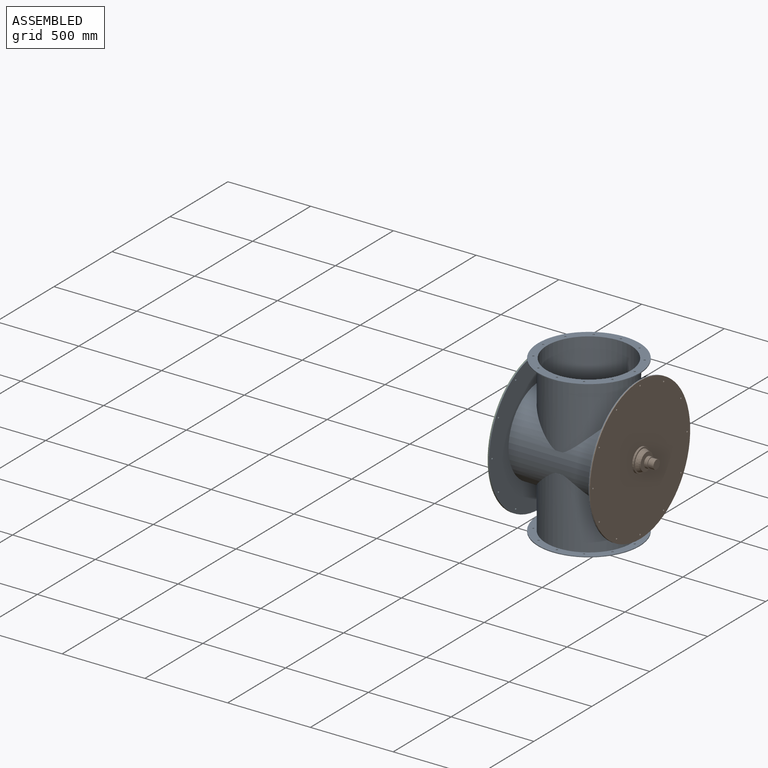
[diagram: assembled view]
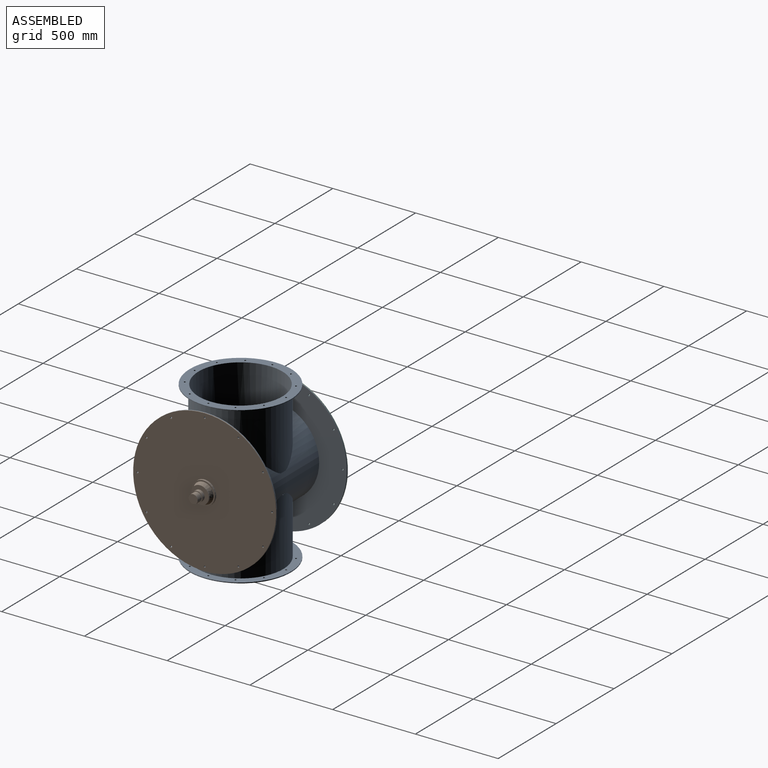
[diagram: assembled view, second angle]
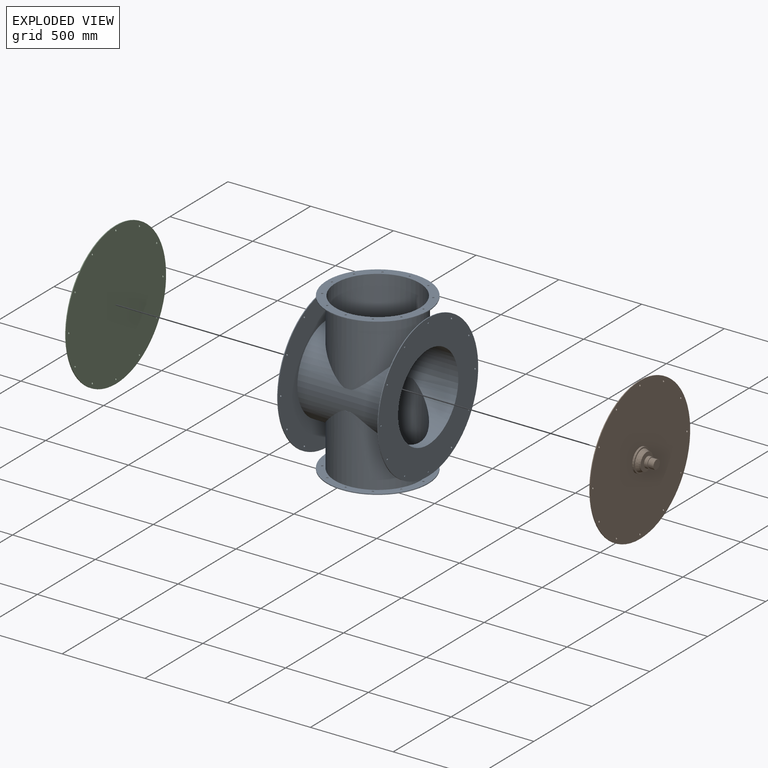
[diagram: exploded view]
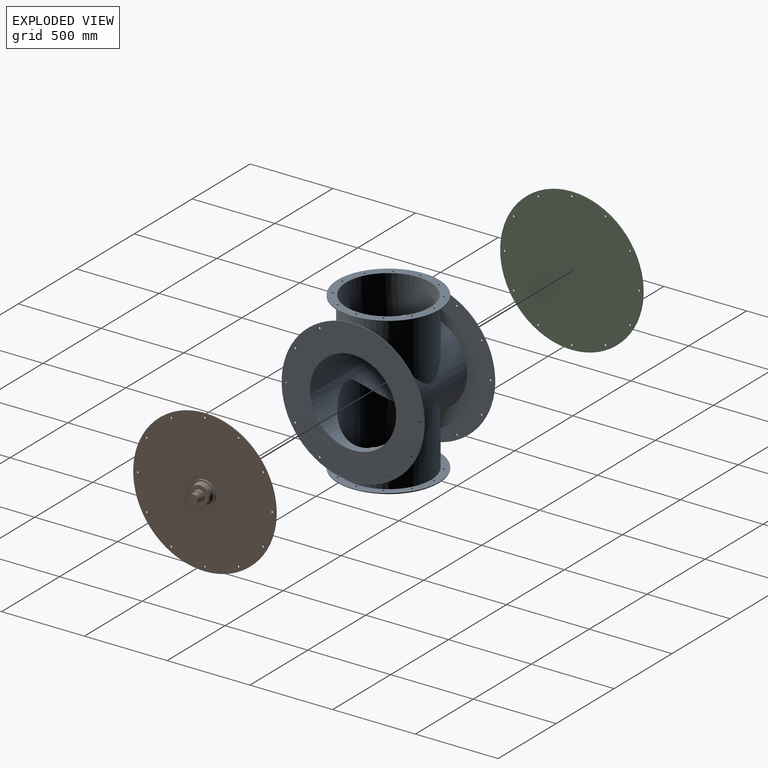
[diagram: exploded view, second angle]
ASSEMBLY  parts=3 mates=2
PART A: 74 faces, bbox 612.8x863.6x946.2 mm
  f0: plane 863.6x863.6mm, normal (-1,0,0), area 371672.6mm2, adj f1,f2,f3,f4,f5,f6,f7,f8
  f1: cylinder r=5.49mm len=10.99mm, axis (-1,0,0), area 164.4mm2, adj f0,f14
  f2: cylinder r=5.49mm len=10.99mm, axis (-1,0,0), area 164.4mm2, adj f0,f14
  f3: cylinder r=5.49mm len=10.99mm, axis (-1,0,0), area 164.4mm2, adj f0,f14
  f4: cylinder r=5.49mm len=10.99mm, axis (-1,0,0), area 164.4mm2, adj f0,f14
  f5: cylinder r=5.49mm len=10.99mm, axis (-1,0,0), area 164.4mm2, adj f0,f14
  f6: cylinder r=5.49mm len=10.99mm, axis (-1,0,0), area 164.4mm2, adj f0,f14
  f7: cylinder r=5.49mm len=10.99mm, axis (-1,0,0), area 164.4mm2, adj f0,f14
  f8: cylinder r=5.49mm len=10.99mm, axis (-1,0,0), area 164.4mm2, adj f0,f14
  f9: cylinder r=5.49mm len=10.99mm, axis (-1,0,0), area 164.4mm2, adj f0,f14
  f10: cylinder r=5.49mm len=10.99mm, axis (-1,0,0), area 164.4mm2, adj f0,f14
  f11: cylinder r=5.49mm len=10.99mm, axis (-1,0,0), area 164.4mm2, adj f0,f14
  f12: cylinder r=5.49mm len=10.99mm, axis (-1,0,0), area 164.4mm2, adj f0,f14
  f13: cylinder r=431.8mm len=863.6mm, axis (1,0,0), area 12921mm2, adj f0,f14
  f14: plane 863.6x863.6mm, normal (1,0,0), area 363810.8mm2, adj f1,f2,f3,f4,f5,f6,f7,f8
  f15: plane 45.01x0.98mm, normal (0,0,1), area 29.4mm2, adj f18,f48
  f16: plane 45.01x0.98mm, normal (0,0,1), area 29.4mm2, adj f18,f48
  f17: plane 45.01x0.98mm, normal (0,0,-1), area 29.4mm2, adj f48,f50
  f18: cylinder r=258.76mm len=517.53mm, axis (0,0,-1), area 470868.9mm2, adj f15,f16,f33,f48
  f19: cylinder r=5.49mm len=10.99mm, axis (0,0,-1), area 164.4mm2, adj f31,f33
  f20: cylinder r=5.49mm len=10.99mm, axis (0,0,-1), area 164.4mm2, adj f31,f33
  f21: cylinder r=5.49mm len=10.99mm, axis (0,0,-1), area 164.4mm2, adj f31,f33
  f22: cylinder r=5.49mm len=10.99mm, axis (0,0,-1), area 164.4mm2, adj f31,f33
  f23: cylinder r=5.49mm len=10.99mm, axis (0,0,-1), area 164.4mm2, adj f31,f33
  f24: cylinder r=5.49mm len=10.99mm, axis (0,0,-1), area 164.4mm2, adj f31,f33
  f25: cylinder r=5.49mm len=10.99mm, axis (0,0,-1), area 164.4mm2, adj f31,f33
  f26: cylinder r=5.49mm len=10.99mm, axis (0,0,-1), area 164.4mm2, adj f31,f33
  f27: cylinder r=5.49mm len=10.99mm, axis (0,0,-1), area 164.4mm2, adj f31,f33
  f28: cylinder r=5.49mm len=10.99mm, axis (0,0,-1), area 164.4mm2, adj f31,f33
  f29: cylinder r=5.49mm len=10.99mm, axis (0,0,-1), area 164.4mm2, adj f31,f33
  f30: cylinder r=5.49mm len=10.99mm, axis (0,0,-1), area 164.4mm2, adj f31,f33
  f31: plane 612.78x612.78mm, normal (0,0,-1), area 91091.3mm2, adj f19,f20,f21,f22,f23,f24,f25,f26
  f32: cylinder r=306.39mm len=612.78mm, axis (0,0,-1), area 9168.2mm2, adj f31,f33
  f33: plane 612.78x612.78mm, normal (0,0,1), area 83419.4mm2, adj f18,f19,f20,f21,f22,f23,f24,f25
  f34: cylinder r=5.49mm len=10.99mm, axis (1,0,0), area 164.4mm2, adj f46,f66
  f35: cylinder r=5.49mm len=10.99mm, axis (1,0,0), area 164.4mm2, adj f46,f66
  f36: cylinder r=5.49mm len=10.99mm, axis (1,0,0), area 164.4mm2, adj f46,f66
  f37: cylinder r=5.49mm len=10.99mm, axis (1,0,0), area 164.4mm2, adj f46,f66
  f38: cylinder r=5.49mm len=10.99mm, axis (1,0,0), area 164.4mm2, adj f46,f66
  f39: cylinder r=5.49mm len=10.99mm, axis (1,0,0), area 164.4mm2, adj f46,f66
  f40: cylinder r=5.49mm len=10.99mm, axis (1,0,0), area 164.4mm2, adj f46,f66
  f41: cylinder r=5.49mm len=10.99mm, axis (1,0,0), area 164.4mm2, adj f46,f66
  f42: cylinder r=5.49mm len=10.99mm, axis (1,0,0), area 164.4mm2, adj f46,f66
  f43: cylinder r=5.49mm len=10.99mm, axis (1,0,0), area 164.4mm2, adj f46,f66
  f44: cylinder r=431.8mm len=863.6mm, axis (-1,0,0), area 12921mm2, adj f46,f66
  f45: cylinder r=5.49mm len=10.99mm, axis (1,0,0), area 164.4mm2, adj f46,f66
  f46: plane 863.6x863.6mm, normal (-1,0,0), area 363810.8mm2, adj f34,f35,f36,f37,f38,f39,f40,f41
  f47: cylinder r=5.49mm len=10.99mm, axis (1,0,0), area 164.4mm2, adj f46,f66
  f48: cylinder r=265.11mm len=600.08mm, axis (1,0,0), area 483387.5mm2, adj f14,f15,f16,f17,f18,f46,f49,f50
  f49: plane 45.01x0.98mm, normal (0,0,-1), area 29.4mm2, adj f48,f50
  f50: cylinder r=258.76mm len=517.53mm, axis (0,0,1), area 470878.3mm2, adj f17,f48,f49,f65
  f51: cylinder r=5.49mm len=10.99mm, axis (0,0,1), area 164.4mm2, adj f63,f65
  f52: cylinder r=5.49mm len=10.99mm, axis (0,0,1), area 164.4mm2, adj f63,f65
  f53: cylinder r=5.49mm len=10.99mm, axis (0,0,1), area 164.4mm2, adj f63,f65
  f54: cylinder r=5.49mm len=10.99mm, axis (0,0,1), area 164.4mm2, adj f63,f65
  f55: cylinder r=5.49mm len=10.99mm, axis (0,0,1), area 164.4mm2, adj f63,f65
  f56: cylinder r=5.49mm len=10.99mm, axis (0,0,1), area 164.4mm2, adj f63,f65
  f57: cylinder r=5.49mm len=10.99mm, axis (0,0,1), area 164.4mm2, adj f63,f65
  f58: cylinder r=5.49mm len=10.99mm, axis (0,0,1), area 164.4mm2, adj f63,f65
  f59: cylinder r=5.49mm len=10.99mm, axis (0,0,1), area 164.4mm2, adj f63,f65
  f60: cylinder r=5.49mm len=10.99mm, axis (0,0,1), area 164.4mm2, adj f63,f65
  f61: cylinder r=5.49mm len=10.99mm, axis (0,0,1), area 164.4mm2, adj f63,f65
  f62: cylinder r=5.49mm len=10.99mm, axis (0,0,1), area 164.4mm2, adj f63,f65
  f63: plane 612.78x612.78mm, normal (0,0,1), area 91091.3mm2, adj f51,f52,f53,f54,f55,f56,f57,f58
  f64: cylinder r=306.39mm len=612.78mm, axis (0,0,1), area 9168.2mm2, adj f63,f65
  f65: plane 612.78x612.78mm, normal (0,0,-1), area 83419.4mm2, adj f50,f51,f52,f53,f54,f55,f56,f57
  f66: plane 863.6x863.6mm, normal (1,0,0), area 371672.6mm2, adj f34,f35,f36,f37,f38,f39,f40,f41
  f67: plane 68.69x2.33mm, normal (0,0,-1), area 106.9mm2, adj f70,f71
  f68: plane 68.69x2.33mm, normal (0,0,-1), area 106.9mm2, adj f70,f71
  f69: plane 68.69x2.33mm, normal (0,0,1), area 106.9mm2, adj f71,f73
  f70: cylinder r=254mm len=508mm, axis (0,0,-1), area 474093.9mm2, adj f31,f67,f68,f71
  f71: cylinder r=260.35mm len=609.6mm, axis (1,0,0), area 501320.7mm2, adj f0,f66,f67,f68,f69,f70,f72,f73
  f72: plane 68.69x2.33mm, normal (0,0,1), area 106.9mm2, adj f71,f73
  f73: cylinder r=254mm len=508mm, axis (0,0,1), area 474073.1mm2, adj f63,f69,f71,f72
PART B: 26 faces, bbox 104.1x863.6x863.6 mm
  f0: plane 54.69x54.69mm, normal (1,0,0), area 2348.9mm2, adj f1
  f1: cylinder r=27.34mm len=54.69mm, axis (-1,0,0), area 5859.1mm2, adj f0,f2
  f2: plane 63.69x63.69mm, normal (1,0,0), area 837.1mm2, adj f1,f3
  f3: cylinder r=31.85mm len=63.69mm, axis (-1,0,0), area 4001.9mm2, adj f2,f4
  f4: plane 63.69x63.69mm, normal (-1,0,0), area 3056.9mm2, adj f3,f5
  f5: cylinder r=6.41mm len=12.82mm, axis (-1,0,0), area 220mm2, adj f4,f6
  f6: plane 107.17x107.17mm, normal (1,0,0), area 8891.9mm2, adj f5,f7
  f7: cylinder r=53.59mm len=107.17mm, axis (-1,0,0), area 3153.7mm2, adj f6,f8
  f8: cone r=53.59mm half-angle=23.7deg, axis (-1,0,0), area 7449.8mm2, adj f7,f9
  f9: plane 140.16x140.16mm, normal (1,0,0), area 3416.1mm2, adj f8,f10
  f10: cylinder r=70.08mm len=140.16mm, axis (-1,0,0), area 5092.3mm2, adj f9,f11
  f11: plane 863.6x863.6mm, normal (1,0,0), area 569188.3mm2, adj f10,f12,f13,f14,f15,f16,f17,f18
  f12: cylinder r=5.49mm len=10.99mm, axis (1,0,0), area 164.4mm2, adj f11,f25
  f13: cylinder r=5.49mm len=10.99mm, axis (1,0,0), area 164.4mm2, adj f11,f25
  f14: cylinder r=5.49mm len=10.99mm, axis (1,0,0), area 164.4mm2, adj f11,f25
  f15: cylinder r=5.49mm len=10.99mm, axis (1,0,0), area 164.4mm2, adj f11,f25
  f16: cylinder r=5.49mm len=10.99mm, axis (1,0,0), area 164.4mm2, adj f11,f25
  f17: cylinder r=5.49mm len=10.99mm, axis (1,0,0), area 164.4mm2, adj f11,f25
  f18: cylinder r=5.49mm len=10.99mm, axis (1,0,0), area 164.4mm2, adj f11,f25
  f19: cylinder r=5.49mm len=10.99mm, axis (1,0,0), area 164.4mm2, adj f11,f25
  f20: cylinder r=5.49mm len=10.99mm, axis (1,0,0), area 164.4mm2, adj f11,f25
  f21: cylinder r=5.49mm len=10.99mm, axis (1,0,0), area 164.4mm2, adj f11,f25
  f22: cylinder r=431.8mm len=863.6mm, axis (-1,0,0), area 12921mm2, adj f11,f25
  f23: cylinder r=5.49mm len=10.99mm, axis (1,0,0), area 164.4mm2, adj f11,f25
  f24: cylinder r=5.49mm len=10.99mm, axis (1,0,0), area 164.4mm2, adj f11,f25
  f25: plane 863.6x863.6mm, normal (-1,0,0), area 584616.5mm2, adj f12,f13,f14,f15,f16,f17,f18,f19
PART C: 31 faces, bbox 104.1x863.6x863.6 mm
  f0: cylinder r=5.49mm len=10.99mm, axis (-1,0,0), area 164.4mm2, adj f13,f30
  f1: cylinder r=5.49mm len=10.99mm, axis (-1,0,0), area 164.4mm2, adj f13,f30
  f2: cylinder r=5.49mm len=10.99mm, axis (-1,0,0), area 164.4mm2, adj f13,f30
  f3: cylinder r=5.49mm len=10.99mm, axis (-1,0,0), area 164.4mm2, adj f13,f30
  f4: cylinder r=5.49mm len=10.99mm, axis (-1,0,0), area 164.4mm2, adj f13,f30
  f5: cylinder r=5.49mm len=10.99mm, axis (-1,0,0), area 164.4mm2, adj f13,f30
  f6: cylinder r=431.8mm len=863.6mm, axis (1,0,0), area 12921mm2, adj f13,f30
  f7: cylinder r=5.49mm len=10.99mm, axis (-1,0,0), area 164.4mm2, adj f13,f30
  f8: cylinder r=5.49mm len=10.99mm, axis (-1,0,0), area 164.4mm2, adj f13,f30
  f9: cylinder r=5.49mm len=10.99mm, axis (-1,0,0), area 164.4mm2, adj f13,f30
  f10: cylinder r=5.49mm len=10.99mm, axis (-1,0,0), area 164.4mm2, adj f13,f30
  f11: cylinder r=5.49mm len=10.99mm, axis (-1,0,0), area 164.4mm2, adj f13,f30
  f12: cylinder r=5.49mm len=10.99mm, axis (-1,0,0), area 164.4mm2, adj f13,f30
  f13: plane 863.6x863.6mm, normal (-1,0,0), area 569188.3mm2, adj f0,f1,f2,f3,f4,f5,f6,f7
  f14: cylinder r=70.08mm len=140.16mm, axis (1,0,0), area 5092.3mm2, adj f13,f15
  f15: plane 140.16x140.16mm, normal (-1,0,0), area 3416.1mm2, adj f14,f16
  f16: cone r=53.59mm half-angle=23.7deg, axis (1,0,0), area 7449.8mm2, adj f15,f17
  f17: cylinder r=53.59mm len=107.17mm, axis (1,0,0), area 3153.7mm2, adj f16,f18
  f18: plane 107.17x107.17mm, normal (-1,0,0), area 8891.9mm2, adj f17,f19
  f19: cylinder r=6.41mm len=12.82mm, axis (1,0,0), area 220mm2, adj f18,f20
  f20: plane 63.69x63.69mm, normal (1,0,0), area 3056.9mm2, adj f19,f21
  f21: cylinder r=31.85mm len=63.69mm, axis (1,0,0), area 4001.9mm2, adj f20,f22
  f22: plane 63.69x63.69mm, normal (-1,0,0), area 837.1mm2, adj f21,f23
  f23: cylinder r=27.34mm len=54.69mm, axis (1,0,0), area 1145.4mm2, adj f22,f24
  f24: plane 235.51x235.51mm, normal (1,0,0), area 41214.8mm2, adj f23,f25
  f25: cylinder r=117.76mm len=235.51mm, axis (1,0,0), area 4073.7mm2, adj f24,f26
  f26: cone r=109.89mm half-angle=55deg, axis (1,0,0), area 6865.1mm2, adj f25,f27
  f27: plane 219.79x219.79mm, normal (-1,0,0), area 28130.7mm2, adj f26,f28
  f28: cylinder r=55.88mm len=111.76mm, axis (1,0,0), area 5766.7mm2, adj f27,f29
  f29: plane 111.76x111.76mm, normal (-1,0,0), area 9809.4mm2, adj f28
  f30: plane 863.6x863.6mm, normal (1,0,0), area 584616.5mm2, adj f0,f1,f2,f3,f4,f5,f6,f7
PLACE A t=(340.29,131.48,-97.48)mm
PLACE B t=(340.29,131.48,-97.48)mm
PLACE C t=(340.29,131.48,-97.48)mm
MATE fastened A.f44 <-> B.f8  axis (1,0,0) through (645.09,131.48,-97.48)mm
MATE fastened C.f26 <-> A.f13  axis (1,0,0) through (35.49,131.48,-97.48)mm
